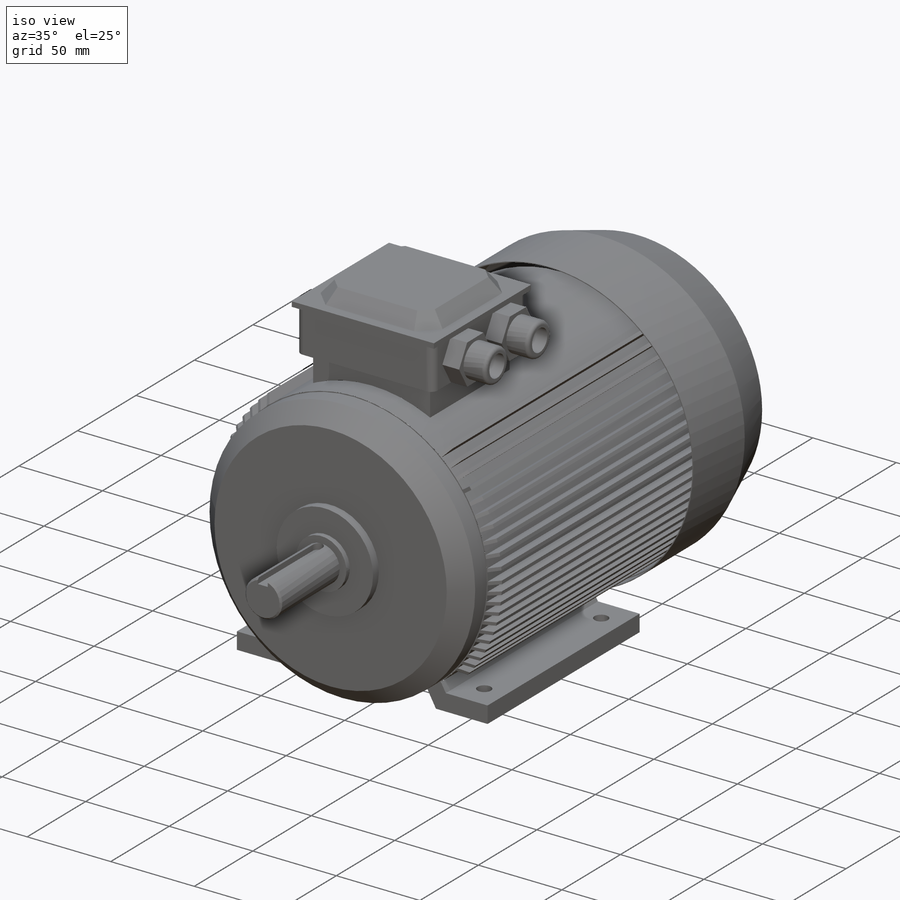
[diagram: iso view]
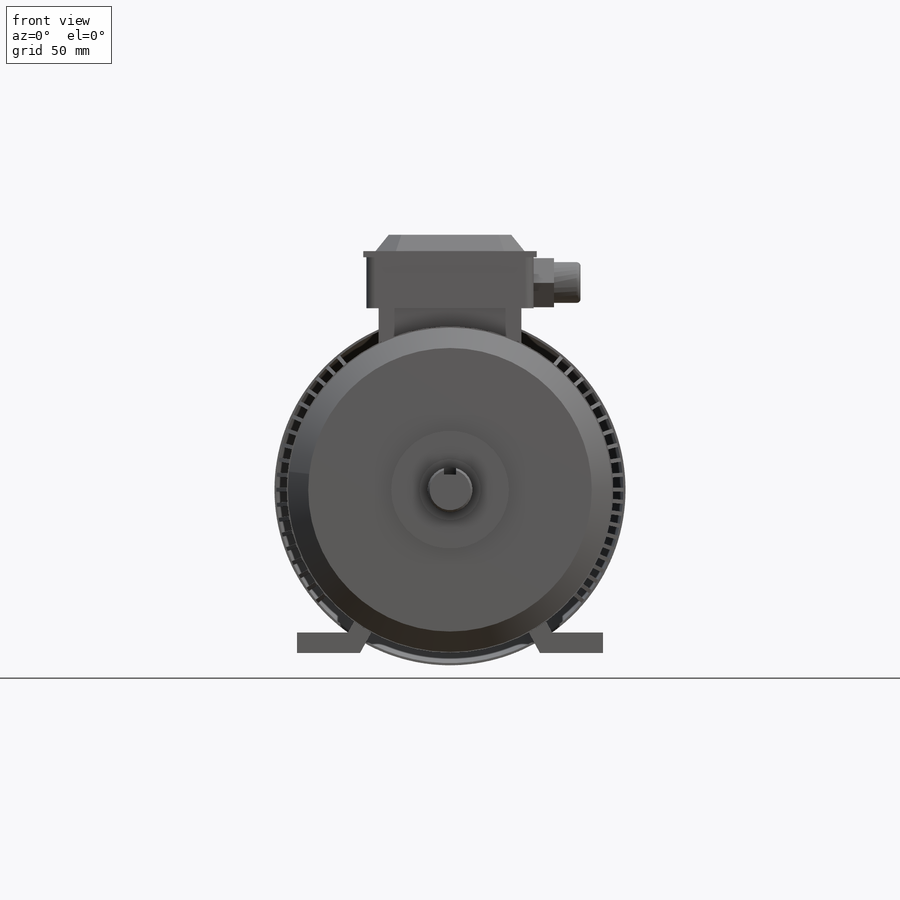
[diagram: front view]
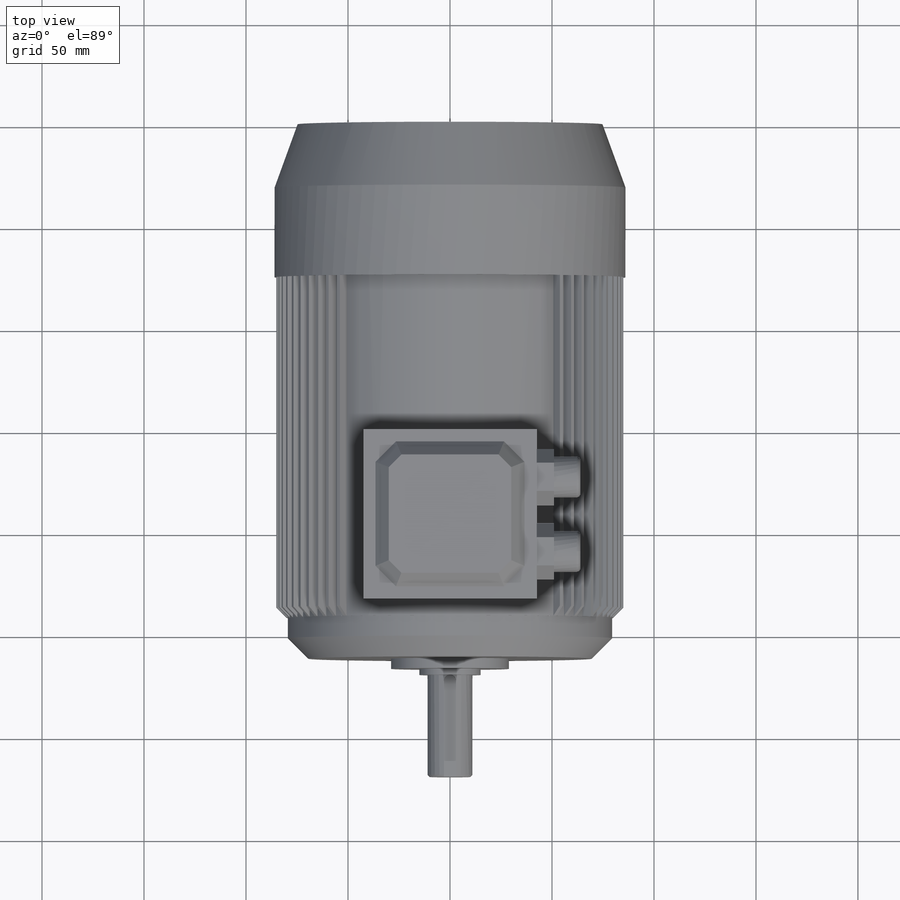
[diagram: top view]
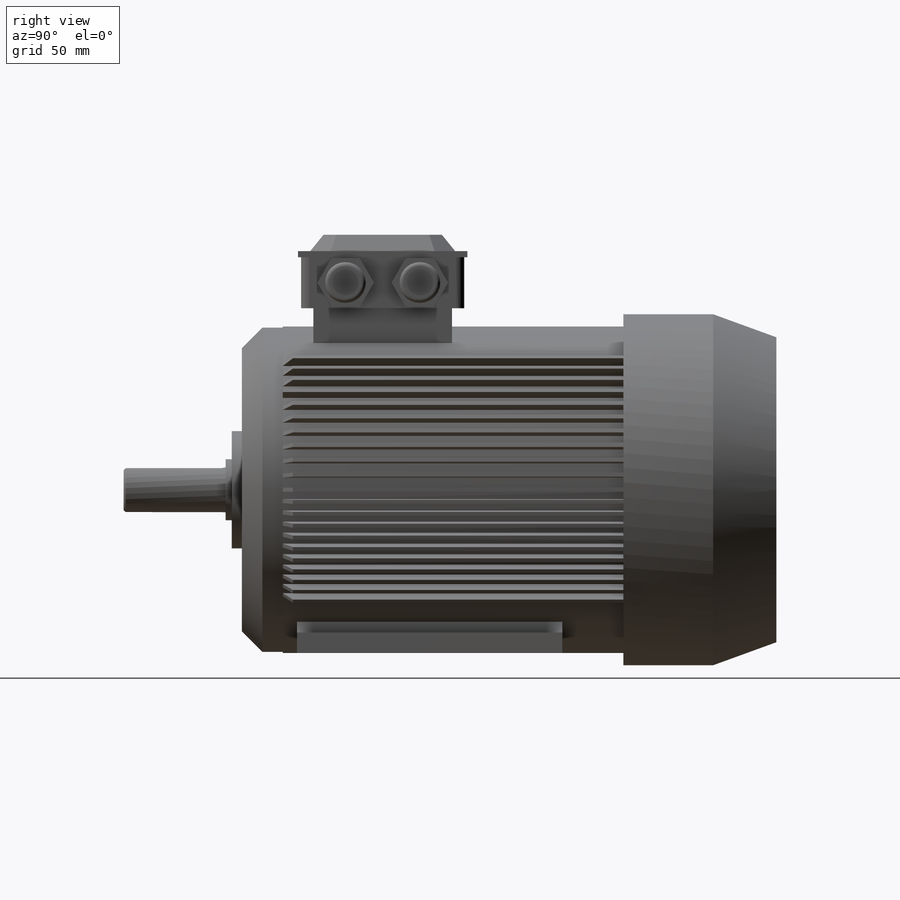
[diagram: right view]
SOLIDWORKS PART (.sldprt)
format: sldprt  version: not decoded by parser v0  size: 1,691,648 bytes
history: native  units: mm
features: sketch x23, extrude x15, cut_extrude x6, plane x5, chamfer x5, pattern_linear x5, pattern_circular x4, fillet x3, material x1, cut_revolve x1 (+12 scaffold rows collapsed)
feature tree (80):
  scaffold x12  (default folders/planes/origin — collapsed)
  material  "Материал <не указан>"
  plane  "Спереди"
  plane  "Сверху"
  plane  "Справа"
  sketch  "Эскиз1"  dims[D1=160.0mm]
  extrude  "Вытянуть1"  Depth=242mm
  sketch  "Эскиз2"  dims[D1=159.0mm]
  extrude  "Вытянуть2"  Depth=20mm
  chamfer  "Фаска2"  Distance=10mm Angle=45deg
  sketch  "Эскиз6"
  extrude  "Вытянуть6"  Depth=5mm
  sketch  "Эскиз7"  dims[D1=30.0mm]
  extrude  "Вытянуть7"  Depth=3mm
  sketch  "Эскиз8"  dims[D1=22.0mm]
  extrude  "Вытянуть8"  Depth=50mm
  chamfer  "Фаска3"  Distance=1mm Angle=45deg
  sketch  "Эскиз9"  dims[D1=3.0mm D2=6.0mm]
  cut_extrude  "Вытянуть9"  Depth=50mm
  fillet  "Скругление1"  Radius=3mm
  sketch  "Эскиз10"
  extrude  "Вытянуть10"  Depth=75mm
  chamfer  "Фаска4"  Distance=31mm Angle=20deg
  plane  "Плоскость3"  Offset=35mm
  sketch  "Эскиз11"  dims[c1.D2=30.0mm c1.D1=62.5mm c2.D2=80.0mm c2.D3=10.0mm c2.D4=10.0mm c2.D5=50.0mm c2.D6=25.0mm]
  extrude  "Вытянуть11"  Depth=130mm
  sketch  "Эскиз12"  dims[c1.D1=8.0mm c1.D2=8.0mm c1.D3=8.0mm c1.D4=8.0mm c1.D5=8.0mm c1.D6=8.0mm c1.D7=8.0mm c1.D8=8.0mm c1.D9=8.0mm c1.D10=8.0mm c1.D11=8.0mm c1.D12=8.0mm c2.D5=125.0mm c2.D6=62.5mm c2.D7=125.0mm c2.D8=62.5mm c2.D9=50.0mm c2.D10=50.0mm c2.D11=100.0mm c2.D12=100.0mm]
  cut_extrude  "Вытянуть12"  Depth=12mm
  plane  "Плоскость4"  Offset=35mm
  sketch  "Эскиз13"  dims[c1.D1=204.0mm c1.D2=70.0mm c1.D3=35.0mm c2.D1=89.0mm]
  extrude  "Вытянуть13"  Depth=68mm
  sketch  "Эскиз14"  dims[D1=6.0mm D2=6.0mm D3=6.0mm D4=6.0mm]
  extrude  "Вытянуть14"  Depth=25mm
  sketch  "Эскиз15"  dims[D1=1.5mm D2=1.5mm D3=1.5mm D4=1.5mm]
  extrude  "Вытянуть15"  Depth=3mm
  sketch  "Эскиз16"  dims[c1.D1=~65.874858mm c1.D2=6.0mm c2.D1=6.0mm c2.D3=6.0mm c2.D4=6.0mm c2.D7=10.0mm c2.D8=10.0mm c2.D9=10.0mm c2.D10=10.0mm]
  extrude  "Вытянуть16"  Depth=8mm
  fillet  "Скругление2"  Radius=4mm
  sketch  "Эскиз17"  dims[D1=24.0mm]
  extrude  "Вытянуть17"  Depth=10mm
  sketch  "Эскиз18"  dims[D1=20.0mm]
  extrude  "Вытянуть18"  Depth=13mm
  fillet  "Скругление3"  Radius=2mm
  sketch  "Эскиз19"
  cut_extrude  "Вытянуть19"  Depth=13mm
  sketch  "Эскиз20"  dims[D1=2.0mm D2=1.0mm]
  sketch  "Эскиз21"
  cut_extrude  "Вытянуть21"  Depth=10mm
  sketch  "Эскиз22"  dims[D1=1.0mm D2=2.0mm]
  extrude  "Вытянуть23"  Depth=175mm
  pattern_circular  "Круговой массив1"  Count=11 Angle=4deg
  pattern_circular  "Круговой массив2"  Count=11 Angle=5deg
  sketch  "Эскиз23"  dims[c1.D1=~29.004314mm c2.D1=~29.004314mm c3.D1=2.0mm c3.D2=1.0mm]
  extrude  "Вытянуть24"  Depth=171mm
  pattern_circular  "Круговой массив3"  Count=11 Angle=5deg
  pattern_circular  "Круговой массив4"  Count=9 Angle=5deg
  chamfer  "Фаска5"  Distance=5mm Angle=45deg
  chamfer  "Фаска6"  Distance=5mm Angle=45deg
  sketch  "Эскиз24"  dims[D1=8.0mm D2=8.0mm D3=1.0mm D4=4.0mm]
  cut_extrude  "Вытянуть25"  Depth=4mm
  pattern_linear  "Линейный массив1"  Count1=6 Count2=1 Spacing1=10mm Spacing2=50mm
  pattern_linear  "Линейный массив2"  Count1=7 Count2=1 Spacing1=10mm Spacing2=50mm
  pattern_linear  "Линейный массив4"  Count1=5 Count2=1 Spacing1=10mm Spacing2=50mm
  pattern_linear  "Линейный массив5"  Count1=4 Count2=1 Spacing1=10mm Spacing2=50mm
  sketch  "Эскиз25"  dims[D1=8.0mm D2=8.0mm D3=2.0mm D4=8.0mm D5=8.0mm D6=2.0mm D7=8.0mm D8=2.0mm D9=2.0mm D10=8.0mm]
  cut_extrude  "Вытянуть26"  Depth=4mm
  pattern_linear  "Линейный массив6"  Count1=7 Count2=1 Spacing1=10mm Spacing2=50mm
  sketch  "Эскиз26"  dims[D1=1.0mm D2=1.0mm D3=~40.550466mm]
  cut_revolve  "Вырез-Повернуть1"  Angle=360deg
decode coverage: 58 of 62 modeling features carry decoded parameters
note: ~ marks probable driven/reference dimensions
note: suppression state not decoded; provenance and decode notes live in map.json
